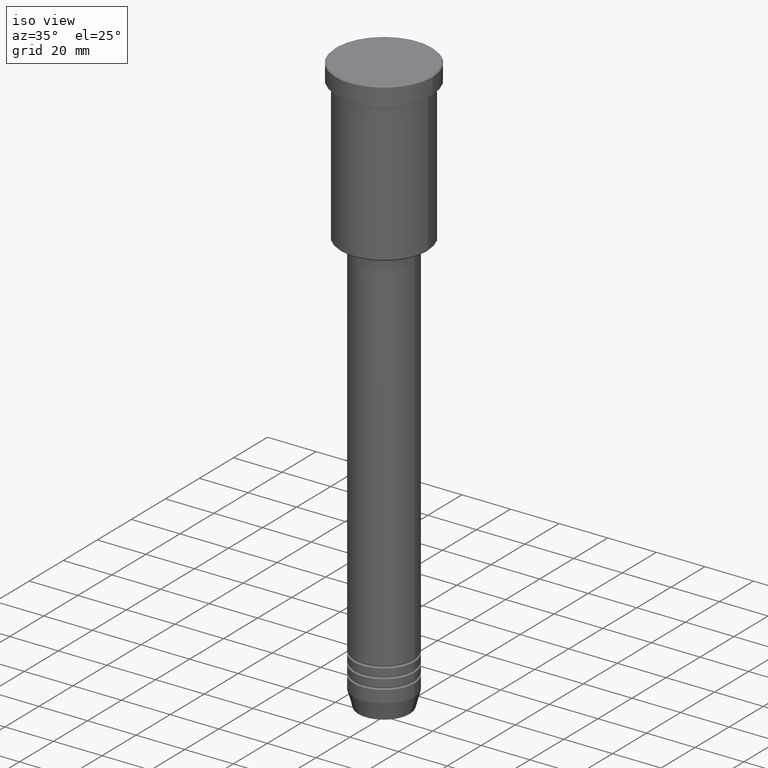
[diagram: clean part render]
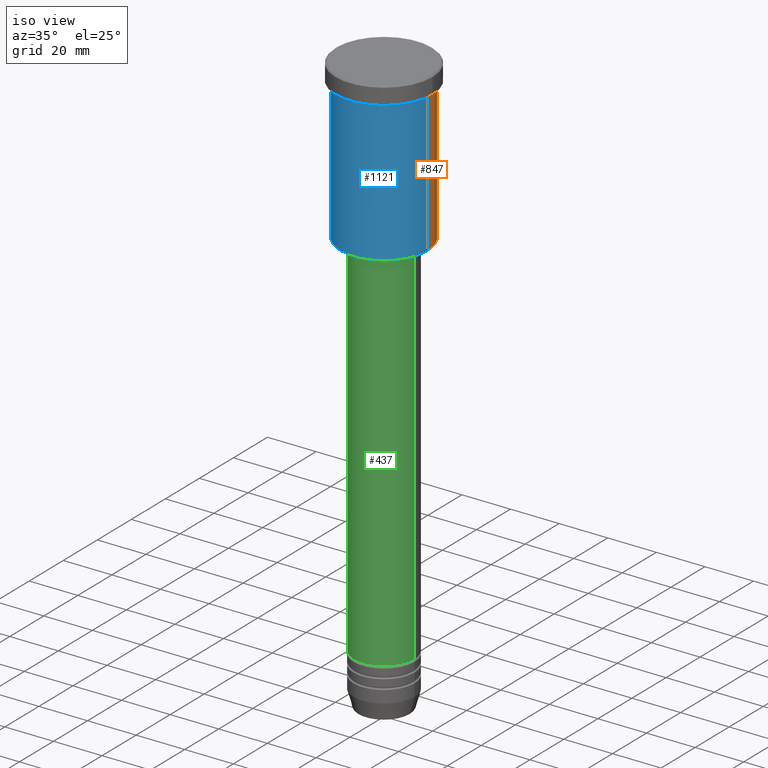
[diagram: same view with three faces highlighted in distinct colors, each labeled with its STEP entity id]
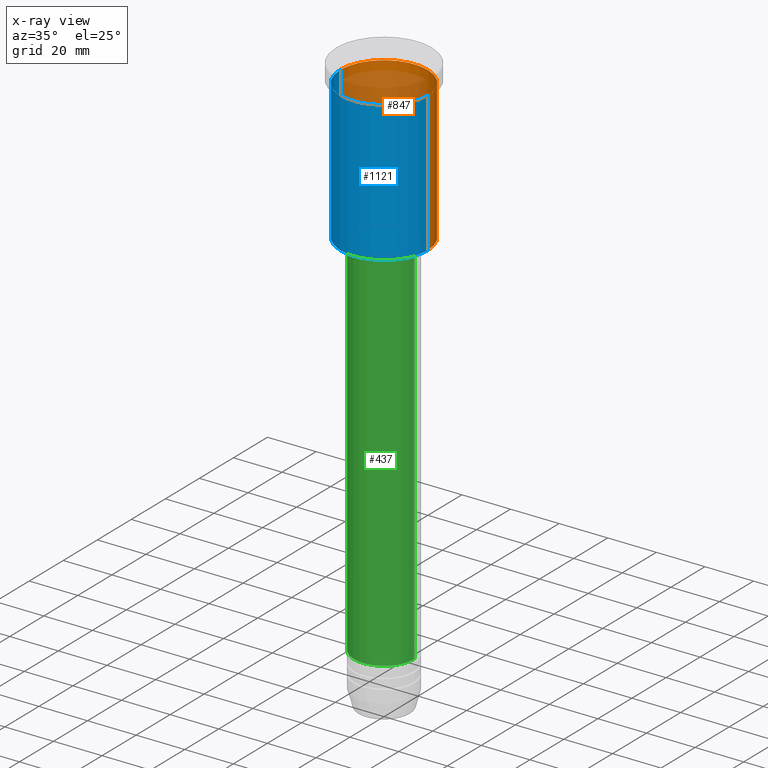
[diagram: x-ray of the same camera — body ghosted, the three highlighted faces saturated]
A machine part, iso view with three faces highlighted in distinct colors.
The next image is the same camera in x-ray (body ghosted, the three faces saturated) — at least one of them is partly hidden behind the body in this view.
Their STEP definitions:

[orange] entity #847 — the highlighted cylindrical surface (partial cylindrical patch) has radius 18 mm, axis along (-0, -0, 1).
#1 = VERTEX_POINT ( 'NONE', #350 ) ;
#20 = FACE_OUTER_BOUND ( 'NONE', #446, .T. ) ;
#55 = DIRECTION ( 'NONE',  ( -0.000000000000000000, -0.000000000000000000, 1.000000000000000000 ) ) ;
#77 = CARTESIAN_POINT ( 'NONE',  ( 0.000000000000000000, 0.000000000000000000, -65.49999999999995737 ) ) ;
#100 = ORIENTED_EDGE ( 'NONE', *, *, #951, .F. ) ;
#112 = AXIS2_PLACEMENT_3D ( 'NONE', #726, #1105, #754 ) ;
#146 = VECTOR ( 'NONE', #527, 1000.000000000000000 ) ;
#195 = ORIENTED_EDGE ( 'NONE', *, *, #921, .F. ) ;
#254 = DIRECTION ( 'NONE',  ( -0.000000000000000000, -0.000000000000000000, 1.000000000000000000 ) ) ;
#325 = CIRCLE ( 'NONE', #1133, 18.00000000000000000 ) ;
#337 = VERTEX_POINT ( 'NONE', #932 ) ;
#350 = CARTESIAN_POINT ( 'NONE',  ( -18.00000000000000000, 2.204364238465235428E-15, -65.49999999999995737 ) ) ;
#358 = ORIENTED_EDGE ( 'NONE', *, *, #428, .T. ) ;
#364 = DIRECTION ( 'NONE',  ( -0.000000000000000000, -0.000000000000000000, 1.000000000000000000 ) ) ;
#428 = EDGE_CURVE ( 'NONE', #1, #1058, #457, .T. ) ;
#446 = EDGE_LOOP ( 'NONE', ( #1145, #358, #100, #195 ) ) ;
#457 = LINE ( 'NONE', #534, #146 ) ;
#495 = VERTEX_POINT ( 'NONE', #586 ) ;
#498 = DIRECTION ( 'NONE',  ( -1.000000000000000000, 0.000000000000000000, 0.000000000000000000 ) ) ;
#527 = DIRECTION ( 'NONE',  ( -0.000000000000000000, -0.000000000000000000, 1.000000000000000000 ) ) ;
#534 = CARTESIAN_POINT ( 'NONE',  ( -18.00000000000000000, 2.204364238465235428E-15, 0.000000000000000000 ) ) ;
#542 = LINE ( 'NONE', #826, #998 ) ;
#558 = AXIS2_PLACEMENT_3D ( 'NONE', #1069, #254, #735 ) ;
#586 = CARTESIAN_POINT ( 'NONE',  ( 18.00000000000000000, 0.000000000000000000, -65.49999999999995737 ) ) ;
#597 = CARTESIAN_POINT ( 'NONE',  ( -18.00000000000000000, 2.204364238465235428E-15, -7.999999999999996447 ) ) ;
#623 = EDGE_CURVE ( 'NONE', #495, #1, #325, .T. ) ;
#726 = CARTESIAN_POINT ( 'NONE',  ( 0.000000000000000000, 0.000000000000000000, 0.000000000000000000 ) ) ;
#732 = CYLINDRICAL_SURFACE ( 'NONE', #112, 18.00000000000000000 ) ;
#735 = DIRECTION ( 'NONE',  ( 1.000000000000000000, 0.000000000000000000, 0.000000000000000000 ) ) ;
#754 = DIRECTION ( 'NONE',  ( 1.000000000000000000, 0.000000000000000000, 0.000000000000000000 ) ) ;
#801 = CIRCLE ( 'NONE', #558, 18.00000000000000000 ) ;
#826 = CARTESIAN_POINT ( 'NONE',  ( 18.00000000000000000, 0.000000000000000000, 0.000000000000000000 ) ) ;
#847 = ADVANCED_FACE ( 'NONE', ( #20 ), #732, .T. ) ;
#921 = EDGE_CURVE ( 'NONE', #495, #337, #542, .T. ) ;
#932 = CARTESIAN_POINT ( 'NONE',  ( 18.00000000000000000, 0.000000000000000000, -7.999999999999996447 ) ) ;
#951 = EDGE_CURVE ( 'NONE', #337, #1058, #801, .T. ) ;
#998 = VECTOR ( 'NONE', #364, 1000.000000000000000 ) ;
#1058 = VERTEX_POINT ( 'NONE', #597 ) ;
#1069 = CARTESIAN_POINT ( 'NONE',  ( 0.000000000000000000, 0.000000000000000000, -7.999999999999996447 ) ) ;
#1105 = DIRECTION ( 'NONE',  ( -0.000000000000000000, -0.000000000000000000, 1.000000000000000000 ) ) ;
#1133 = AXIS2_PLACEMENT_3D ( 'NONE', #77, #55, #498 ) ;
#1145 = ORIENTED_EDGE ( 'NONE', *, *, #623, .T. ) ;

[blue] entity #1121 — the highlighted cylindrical surface (partial cylindrical patch) has radius 18 mm, axis along (-0, -0, 1).
#1 = VERTEX_POINT ( 'NONE', #350 ) ;
#11 = AXIS2_PLACEMENT_3D ( 'NONE', #681, #605, #865 ) ;
#99 = EDGE_CURVE ( 'NONE', #1, #495, #959, .T. ) ;
#116 = DIRECTION ( 'NONE',  ( -0.000000000000000000, -0.000000000000000000, 1.000000000000000000 ) ) ;
#123 = ORIENTED_EDGE ( 'NONE', *, *, #942, .F. ) ;
#124 = ORIENTED_EDGE ( 'NONE', *, *, #99, .T. ) ;
#146 = VECTOR ( 'NONE', #527, 1000.000000000000000 ) ;
#150 = CIRCLE ( 'NONE', #471, 18.00000000000000000 ) ;
#190 = AXIS2_PLACEMENT_3D ( 'NONE', #476, #244, #496 ) ;
#244 = DIRECTION ( 'NONE',  ( -0.000000000000000000, -0.000000000000000000, 1.000000000000000000 ) ) ;
#274 = ORIENTED_EDGE ( 'NONE', *, *, #921, .T. ) ;
#334 = DIRECTION ( 'NONE',  ( 1.000000000000000000, 0.000000000000000000, 0.000000000000000000 ) ) ;
#337 = VERTEX_POINT ( 'NONE', #932 ) ;
#350 = CARTESIAN_POINT ( 'NONE',  ( -18.00000000000000000, 2.204364238465235428E-15, -65.49999999999995737 ) ) ;
#364 = DIRECTION ( 'NONE',  ( -0.000000000000000000, -0.000000000000000000, 1.000000000000000000 ) ) ;
#428 = EDGE_CURVE ( 'NONE', #1, #1058, #457, .T. ) ;
#436 = EDGE_LOOP ( 'NONE', ( #466, #124, #274, #123 ) ) ;
#457 = LINE ( 'NONE', #534, #146 ) ;
#466 = ORIENTED_EDGE ( 'NONE', *, *, #428, .F. ) ;
#471 = AXIS2_PLACEMENT_3D ( 'NONE', #1014, #116, #334 ) ;
#476 = CARTESIAN_POINT ( 'NONE',  ( 0.000000000000000000, 0.000000000000000000, -65.49999999999995737 ) ) ;
#495 = VERTEX_POINT ( 'NONE', #586 ) ;
#496 = DIRECTION ( 'NONE',  ( -1.000000000000000000, 0.000000000000000000, 0.000000000000000000 ) ) ;
#505 = CYLINDRICAL_SURFACE ( 'NONE', #11, 18.00000000000000000 ) ;
#527 = DIRECTION ( 'NONE',  ( -0.000000000000000000, -0.000000000000000000, 1.000000000000000000 ) ) ;
#534 = CARTESIAN_POINT ( 'NONE',  ( -18.00000000000000000, 2.204364238465235428E-15, 0.000000000000000000 ) ) ;
#542 = LINE ( 'NONE', #826, #998 ) ;
#586 = CARTESIAN_POINT ( 'NONE',  ( 18.00000000000000000, 0.000000000000000000, -65.49999999999995737 ) ) ;
#597 = CARTESIAN_POINT ( 'NONE',  ( -18.00000000000000000, 2.204364238465235428E-15, -7.999999999999996447 ) ) ;
#605 = DIRECTION ( 'NONE',  ( -0.000000000000000000, -0.000000000000000000, 1.000000000000000000 ) ) ;
#681 = CARTESIAN_POINT ( 'NONE',  ( 0.000000000000000000, 0.000000000000000000, 0.000000000000000000 ) ) ;
#698 = FACE_OUTER_BOUND ( 'NONE', #436, .T. ) ;
#826 = CARTESIAN_POINT ( 'NONE',  ( 18.00000000000000000, 0.000000000000000000, 0.000000000000000000 ) ) ;
#865 = DIRECTION ( 'NONE',  ( 1.000000000000000000, 0.000000000000000000, 0.000000000000000000 ) ) ;
#921 = EDGE_CURVE ( 'NONE', #495, #337, #542, .T. ) ;
#932 = CARTESIAN_POINT ( 'NONE',  ( 18.00000000000000000, 0.000000000000000000, -7.999999999999996447 ) ) ;
#942 = EDGE_CURVE ( 'NONE', #1058, #337, #150, .T. ) ;
#959 = CIRCLE ( 'NONE', #190, 18.00000000000000000 ) ;
#998 = VECTOR ( 'NONE', #364, 1000.000000000000000 ) ;
#1014 = CARTESIAN_POINT ( 'NONE',  ( 0.000000000000000000, 0.000000000000000000, -7.999999999999996447 ) ) ;
#1058 = VERTEX_POINT ( 'NONE', #597 ) ;
#1121 = ADVANCED_FACE ( 'NONE', ( #698 ), #505, .T. ) ;

[green] entity #437 — the highlighted cylindrical surface (partial cylindrical patch) has radius 12.5 mm, axis along (-0, -0, 1).
#13 = ORIENTED_EDGE ( 'NONE', *, *, #21, .F. ) ;
#21 = EDGE_CURVE ( 'NONE', #208, #1006, #1120, .T. ) ;
#25 = CARTESIAN_POINT ( 'NONE',  ( 0.000000000000000000, 0.000000000000000000, -67.00000000000002842 ) ) ;
#34 = DIRECTION ( 'NONE',  ( 1.000000000000000000, 0.000000000000000000, 0.000000000000000000 ) ) ;
#51 = AXIS2_PLACEMENT_3D ( 'NONE', #25, #711, #1177 ) ;
#53 = DIRECTION ( 'NONE',  ( 1.000000000000000000, 0.000000000000000000, 0.000000000000000000 ) ) ;
#95 = AXIS2_PLACEMENT_3D ( 'NONE', #1051, #1138, #53 ) ;
#104 = ORIENTED_EDGE ( 'NONE', *, *, #183, .T. ) ;
#131 = EDGE_CURVE ( 'NONE', #404, #516, #582, .T. ) ;
#138 = CARTESIAN_POINT ( 'NONE',  ( 12.50000000000000000, 0.000000000000000000, 0.000000000000000000 ) ) ;
#182 = DIRECTION ( 'NONE',  ( -0.000000000000000000, -0.000000000000000000, 1.000000000000000000 ) ) ;
#183 = EDGE_CURVE ( 'NONE', #516, #1006, #1044, .T. ) ;
#196 = FACE_OUTER_BOUND ( 'NONE', #338, .T. ) ;
#208 = VERTEX_POINT ( 'NONE', #674 ) ;
#302 = DIRECTION ( 'NONE',  ( -0.000000000000000000, -0.000000000000000000, 1.000000000000000000 ) ) ;
#316 = DIRECTION ( 'NONE',  ( -0.000000000000000000, -0.000000000000000000, 1.000000000000000000 ) ) ;
#338 = EDGE_LOOP ( 'NONE', ( #946, #362, #104, #13 ) ) ;
#351 = EDGE_CURVE ( 'NONE', #404, #208, #950, .T. ) ;
#362 = ORIENTED_EDGE ( 'NONE', *, *, #131, .T. ) ;
#404 = VERTEX_POINT ( 'NONE', #789 ) ;
#437 = ADVANCED_FACE ( 'NONE', ( #196 ), #913, .T. ) ;
#483 = CARTESIAN_POINT ( 'NONE',  ( -12.50000000000000000, 1.530808498934191521E-15, 0.000000000000000000 ) ) ;
#516 = VERTEX_POINT ( 'NONE', #779 ) ;
#582 = CIRCLE ( 'NONE', #95, 12.50000000000000000 ) ;
#674 = CARTESIAN_POINT ( 'NONE',  ( -12.50000000000000000, 1.530808498934191521E-15, -67.00000000000002842 ) ) ;
#711 = DIRECTION ( 'NONE',  ( -0.000000000000000000, -0.000000000000000000, 1.000000000000000000 ) ) ;
#758 = VECTOR ( 'NONE', #302, 1000.000000000000000 ) ;
#779 = CARTESIAN_POINT ( 'NONE',  ( 12.50000000000000000, 0.000000000000000000, -219.0000000000000000 ) ) ;
#789 = CARTESIAN_POINT ( 'NONE',  ( -12.50000000000000000, 1.530808498934191521E-15, -219.0000000000000000 ) ) ;
#825 = CARTESIAN_POINT ( 'NONE',  ( 0.000000000000000000, 0.000000000000000000, 0.000000000000000000 ) ) ;
#875 = CARTESIAN_POINT ( 'NONE',  ( 12.50000000000000000, 0.000000000000000000, -67.00000000000002842 ) ) ;
#913 = CYLINDRICAL_SURFACE ( 'NONE', #953, 12.50000000000000000 ) ;
#946 = ORIENTED_EDGE ( 'NONE', *, *, #351, .F. ) ;
#950 = LINE ( 'NONE', #483, #758 ) ;
#953 = AXIS2_PLACEMENT_3D ( 'NONE', #825, #182, #34 ) ;
#1006 = VERTEX_POINT ( 'NONE', #875 ) ;
#1044 = LINE ( 'NONE', #138, #1115 ) ;
#1051 = CARTESIAN_POINT ( 'NONE',  ( 0.000000000000000000, 0.000000000000000000, -219.0000000000000000 ) ) ;
#1115 = VECTOR ( 'NONE', #316, 1000.000000000000000 ) ;
#1120 = CIRCLE ( 'NONE', #51, 12.50000000000000000 ) ;
#1138 = DIRECTION ( 'NONE',  ( -0.000000000000000000, -0.000000000000000000, 1.000000000000000000 ) ) ;
#1177 = DIRECTION ( 'NONE',  ( 1.000000000000000000, 0.000000000000000000, 0.000000000000000000 ) ) ;